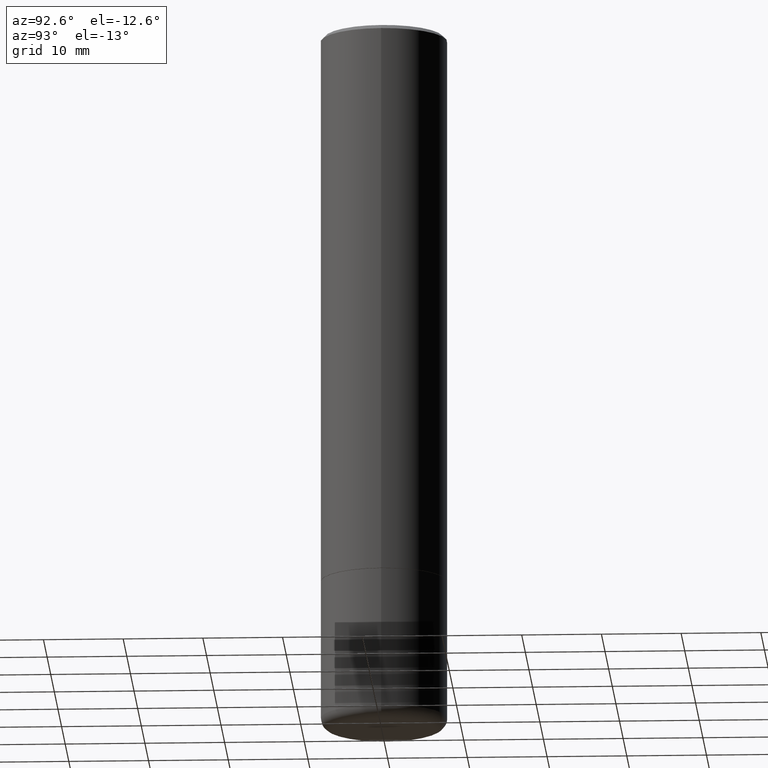
[diagram: clean part render]
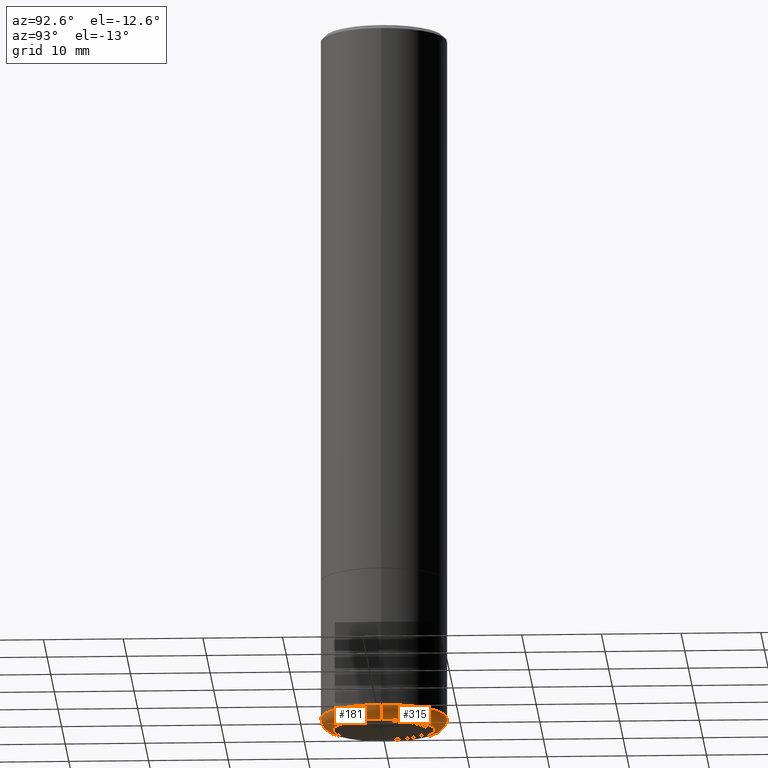
[diagram: same view with one multi-face feature highlighted, each face labeled with its STEP entity id]
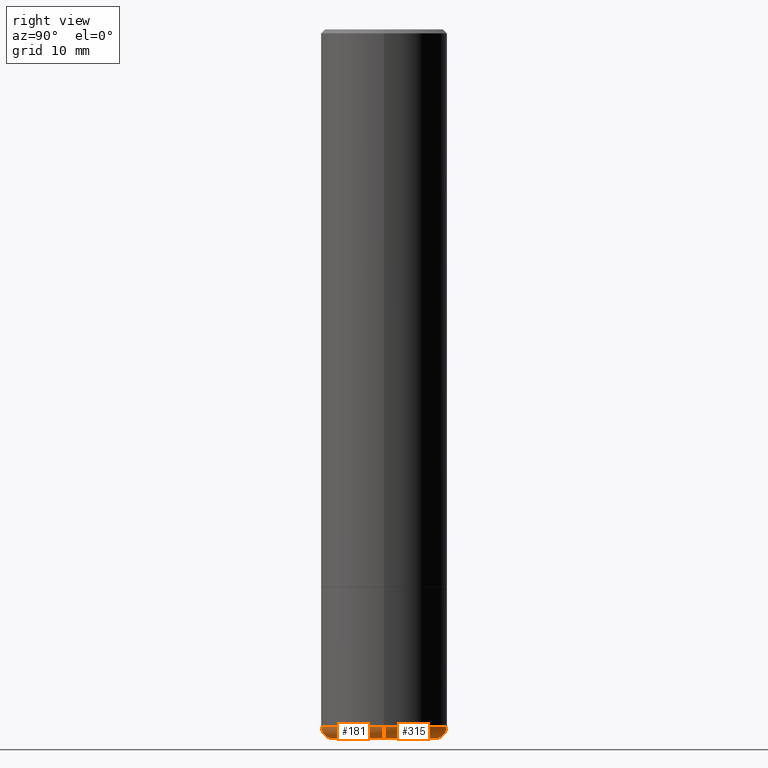
[diagram: same view with one multi-face feature highlighted, each face labeled with its STEP entity id]
A machine part, auxiliary view. The highlighted faces form ONE feature: a constant-radius fillet chain: 2 tangent blend faces with common blend radius 1.524 mm. The faces share edges in the B-rep.
A second angle (right view) of the same feature is appended — it is thin or edge-on in the first view.
Their STEP definitions:
[1] entity #315 (Torus):
#5 = CIRCLE ( 'NONE', #326, 0.06000000000000021289 ) ;
#14 = DIRECTION ( 'NONE',  ( 1.000000000000000000, -6.982962677686275388E-15, 0.000000000000000000 ) ) ;
#33 = CARTESIAN_POINT ( 'NONE',  ( 0.3125000000000000000, -1.419287961909203023E-14, -3.440002284616148653 ) ) ;
#42 = CARTESIAN_POINT ( 'NONE',  ( -0.2525000000000002243, -1.021658337452081772E-14, -3.440002284616148653 ) ) ;
#53 = ORIENTED_EDGE ( 'NONE', *, *, #433, .F. ) ;
#56 = DIRECTION ( 'NONE',  ( 1.000000000000000000, -6.982962677686269077E-15, 0.000000000000000000 ) ) ;
#67 = EDGE_CURVE ( 'NONE', #104, #449, #5, .T. ) ;
#74 = AXIS2_PLACEMENT_3D ( 'NONE', #77, #370, #372 ) ;
#77 = CARTESIAN_POINT ( 'NONE',  ( 8.412418280234396057E-29, -1.201070378231507189E-14, -3.440002284616148653 ) ) ;
#90 = DIRECTION ( 'NONE',  ( -6.982962677686266711E-15, -1.000000000000000000, 3.491481338843145583E-15 ) ) ;
#104 = VERTEX_POINT ( 'NONE', #426 ) ;
#118 = DIRECTION ( 'NONE',  ( -1.000000000000000000, 7.105427357600997914E-15, 0.000000000000000000 ) ) ;
#119 = VERTEX_POINT ( 'NONE', #159 ) ;
#155 = CARTESIAN_POINT ( 'NONE',  ( 8.412418280234396057E-29, -1.201070378231507189E-14, -3.440002284616148653 ) ) ;
#159 = CARTESIAN_POINT ( 'NONE',  ( 0.2519764078700980625, -1.397972653776535220E-14, -3.499999999999999112 ) ) ;
#165 = DIRECTION ( 'NONE',  ( 7.105427357601001859E-15, 1.000000000000000000, -3.491481338843145583E-15 ) ) ;
#193 = AXIS2_PLACEMENT_3D ( 'NONE', #255, #366, #321 ) ;
#198 = CARTESIAN_POINT ( 'NONE',  ( 0.2525000000000002243, -1.377390185843085360E-14, -3.440002284616148653 ) ) ;
#226 = EDGE_CURVE ( 'NONE', #119, #104, #245, .T. ) ;
#228 = ORIENTED_EDGE ( 'NONE', *, *, #226, .T. ) ;
#231 = VERTEX_POINT ( 'NONE', #33 ) ;
#245 = CIRCLE ( 'NONE', #193, 0.2519764078700980625 ) ;
#255 = CARTESIAN_POINT ( 'NONE',  ( 8.559140821647976968E-29, -1.222018468595100619E-14, -3.499999999999999112 ) ) ;
#265 = ORIENTED_EDGE ( 'NONE', *, *, #357, .F. ) ;
#301 = FACE_OUTER_BOUND ( 'NONE', #451, .T. ) ;
#315 = ADVANCED_FACE ( 'NONE', ( #301 ), #443, .T. ) ;
#321 = DIRECTION ( 'NONE',  ( 1.000000000000000000, -6.982962677686264344E-15, 0.000000000000000000 ) ) ;
#326 = AXIS2_PLACEMENT_3D ( 'NONE', #42, #165, #118 ) ;
#357 = EDGE_CURVE ( 'NONE', #119, #231, #380, .T. ) ;
#364 = AXIS2_PLACEMENT_3D ( 'NONE', #155, #392, #56 ) ;
#366 = DIRECTION ( 'NONE',  ( -2.445468806185136597E-29, 3.491481338843145583E-15, 1.000000000000000000 ) ) ;
#370 = DIRECTION ( 'NONE',  ( -2.445468806185136597E-29, 3.491481338843145583E-15, 1.000000000000000000 ) ) ;
#372 = DIRECTION ( 'NONE',  ( 1.000000000000000000, -6.982962677686265922E-15, 4.883557194083112340E-29 ) ) ;
#380 = CIRCLE ( 'NONE', #391, 0.06000000000000021289 ) ;
#391 = AXIS2_PLACEMENT_3D ( 'NONE', #198, #90, #14 ) ;
#392 = DIRECTION ( 'NONE',  ( -2.445468806185136597E-29, 3.491481338843145583E-15, 1.000000000000000000 ) ) ;
#394 = CARTESIAN_POINT ( 'NONE',  ( -0.3125000000000000000, -8.585692682816546214E-15, -3.440002284616148653 ) ) ;
#396 = CIRCLE ( 'NONE', #364, 0.3125000000000000000 ) ;
#426 = CARTESIAN_POINT ( 'NONE',  ( -0.2519764078700980625, -1.011002117853277072E-14, -3.499999999999999112 ) ) ;
#433 = EDGE_CURVE ( 'NONE', #231, #449, #396, .T. ) ;
#443 = TOROIDAL_SURFACE ( 'NONE', #74, 0.2525000000000002243, 0.06000000000000024758 ) ;
#449 = VERTEX_POINT ( 'NONE', #394 ) ;
#451 = EDGE_LOOP ( 'NONE', ( #228, #491, #53, #265 ) ) ;
#491 = ORIENTED_EDGE ( 'NONE', *, *, #67, .T. ) ;
[2] entity #181 (Torus):
#2 = DIRECTION ( 'NONE',  ( -2.445468806185136597E-29, 3.491481338843145583E-15, 1.000000000000000000 ) ) ;
#5 = CIRCLE ( 'NONE', #326, 0.06000000000000021289 ) ;
#14 = DIRECTION ( 'NONE',  ( 1.000000000000000000, -6.982962677686275388E-15, 0.000000000000000000 ) ) ;
#25 = CARTESIAN_POINT ( 'NONE',  ( 8.412418280234396057E-29, -1.201070378231507189E-14, -3.440002284616148653 ) ) ;
#33 = CARTESIAN_POINT ( 'NONE',  ( 0.3125000000000000000, -1.419287961909203023E-14, -3.440002284616148653 ) ) ;
#42 = CARTESIAN_POINT ( 'NONE',  ( -0.2525000000000002243, -1.021658337452081772E-14, -3.440002284616148653 ) ) ;
#54 = AXIS2_PLACEMENT_3D ( 'NONE', #101, #490, #290 ) ;
#67 = EDGE_CURVE ( 'NONE', #104, #449, #5, .T. ) ;
#69 = DIRECTION ( 'NONE',  ( 1.000000000000000000, -6.982962677686269077E-15, 0.000000000000000000 ) ) ;
#70 = DIRECTION ( 'NONE',  ( -2.445468806185136597E-29, 3.491481338843145583E-15, 1.000000000000000000 ) ) ;
#90 = DIRECTION ( 'NONE',  ( -6.982962677686266711E-15, -1.000000000000000000, 3.491481338843145583E-15 ) ) ;
#101 = CARTESIAN_POINT ( 'NONE',  ( 8.412418280234396057E-29, -1.201070378231507189E-14, -3.440002284616148653 ) ) ;
#104 = VERTEX_POINT ( 'NONE', #426 ) ;
#118 = DIRECTION ( 'NONE',  ( -1.000000000000000000, 7.105427357600997914E-15, 0.000000000000000000 ) ) ;
#119 = VERTEX_POINT ( 'NONE', #159 ) ;
#131 = ORIENTED_EDGE ( 'NONE', *, *, #357, .T. ) ;
#159 = CARTESIAN_POINT ( 'NONE',  ( 0.2519764078700980625, -1.397972653776535220E-14, -3.499999999999999112 ) ) ;
#165 = DIRECTION ( 'NONE',  ( 7.105427357601001859E-15, 1.000000000000000000, -3.491481338843145583E-15 ) ) ;
#169 = AXIS2_PLACEMENT_3D ( 'NONE', #330, #2, #463 ) ;
#181 = ADVANCED_FACE ( 'NONE', ( #284 ), #464, .T. ) ;
#187 = EDGE_LOOP ( 'NONE', ( #382, #300, #131, #325 ) ) ;
#198 = CARTESIAN_POINT ( 'NONE',  ( 0.2525000000000002243, -1.377390185843085360E-14, -3.440002284616148653 ) ) ;
#200 = EDGE_CURVE ( 'NONE', #449, #231, #423, .T. ) ;
#210 = AXIS2_PLACEMENT_3D ( 'NONE', #25, #70, #69 ) ;
#231 = VERTEX_POINT ( 'NONE', #33 ) ;
#284 = FACE_OUTER_BOUND ( 'NONE', #187, .T. ) ;
#290 = DIRECTION ( 'NONE',  ( 1.000000000000000000, -6.982962677686265922E-15, 4.883557194083112340E-29 ) ) ;
#298 = CIRCLE ( 'NONE', #169, 0.2519764078700980625 ) ;
#300 = ORIENTED_EDGE ( 'NONE', *, *, #409, .T. ) ;
#325 = ORIENTED_EDGE ( 'NONE', *, *, #200, .F. ) ;
#326 = AXIS2_PLACEMENT_3D ( 'NONE', #42, #165, #118 ) ;
#330 = CARTESIAN_POINT ( 'NONE',  ( 8.559140821647976968E-29, -1.222018468595100619E-14, -3.499999999999999112 ) ) ;
#357 = EDGE_CURVE ( 'NONE', #119, #231, #380, .T. ) ;
#380 = CIRCLE ( 'NONE', #391, 0.06000000000000021289 ) ;
#382 = ORIENTED_EDGE ( 'NONE', *, *, #67, .F. ) ;
#391 = AXIS2_PLACEMENT_3D ( 'NONE', #198, #90, #14 ) ;
#394 = CARTESIAN_POINT ( 'NONE',  ( -0.3125000000000000000, -8.585692682816546214E-15, -3.440002284616148653 ) ) ;
#409 = EDGE_CURVE ( 'NONE', #104, #119, #298, .T. ) ;
#423 = CIRCLE ( 'NONE', #210, 0.3125000000000000000 ) ;
#426 = CARTESIAN_POINT ( 'NONE',  ( -0.2519764078700980625, -1.011002117853277072E-14, -3.499999999999999112 ) ) ;
#449 = VERTEX_POINT ( 'NONE', #394 ) ;
#463 = DIRECTION ( 'NONE',  ( 1.000000000000000000, -6.982962677686264344E-15, 0.000000000000000000 ) ) ;
#464 = TOROIDAL_SURFACE ( 'NONE', #54, 0.2525000000000002243, 0.06000000000000024758 ) ;
#490 = DIRECTION ( 'NONE',  ( -2.445468806185136597E-29, 3.491481338843145583E-15, 1.000000000000000000 ) ) ;